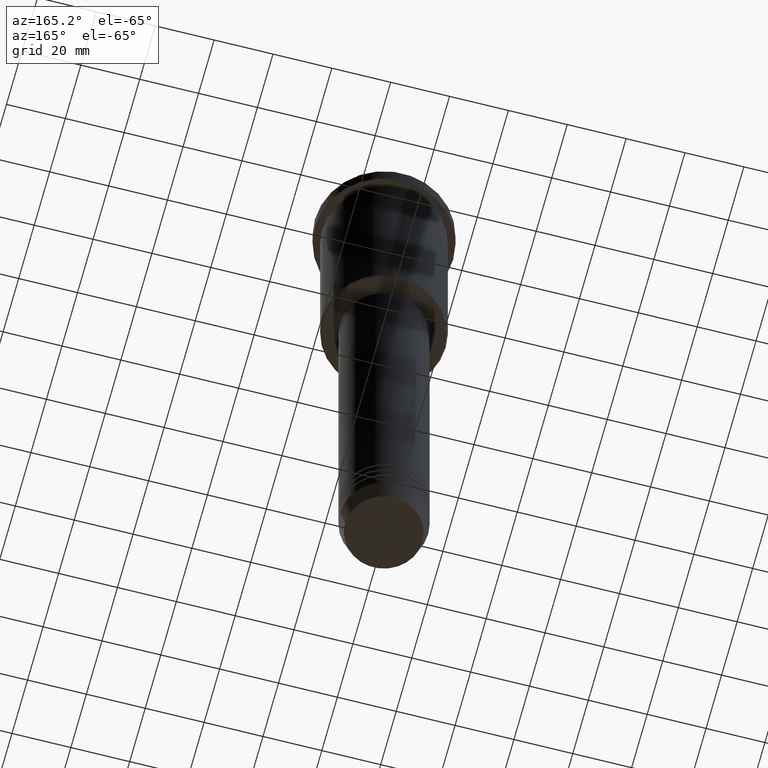
[diagram: clean part render]
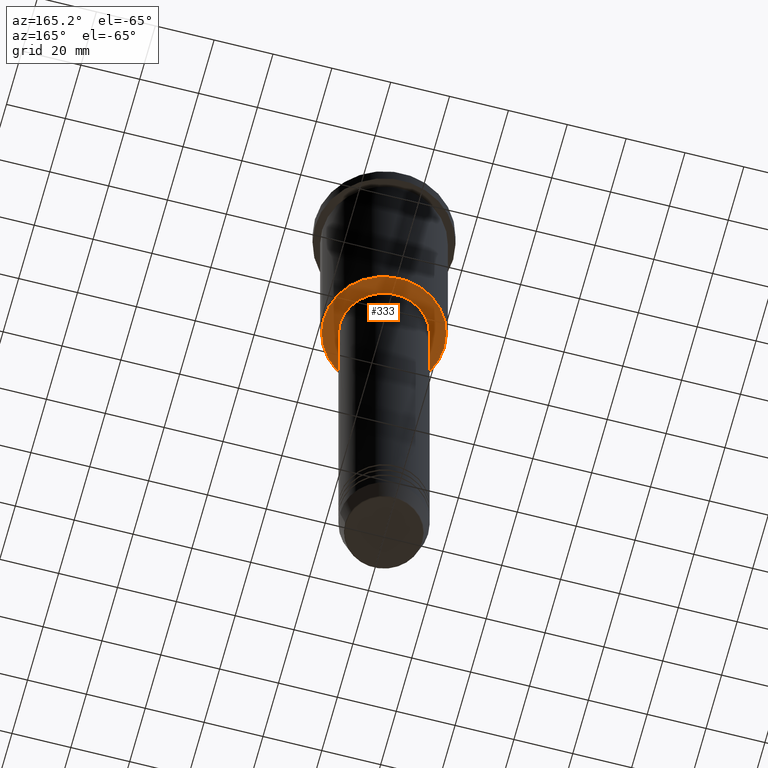
[diagram: same view with one face highlighted and labeled with its STEP entity id]
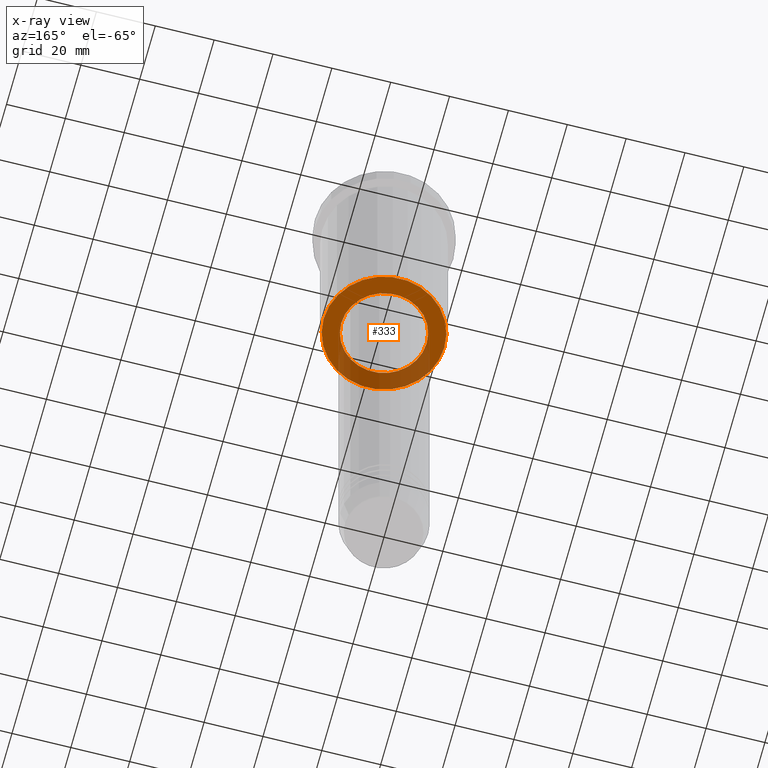
[diagram: x-ray of the same camera — body ghosted, the highlighted face saturated]
A machine part, auxiliary view. The second image highlights one B-rep face of the part: STEP entity #333.
The next image is the same camera in x-ray: the body ghosted, the highlighted face saturated — about 32% of this face is hidden behind the body in this view.
In plain terms, the highlighted planar face has unit normal (0, 0, -1).
Its self-contained STEP definition (entity closure, byte-faithful):
#2 = AXIS2_PLACEMENT_3D ( 'NONE', #643, #810, #1005 ) ;
#24 = ORIENTED_EDGE ( 'NONE', *, *, #110, .T. ) ;
#59 = AXIS2_PLACEMENT_3D ( 'NONE', #182, #102, #74 ) ;
#74 = DIRECTION ( 'NONE',  ( -1.000000000000000000, 0.000000000000000000, 0.000000000000000000 ) ) ;
#84 = PLANE ( 'NONE',  #2 ) ;
#102 = DIRECTION ( 'NONE',  ( 0.000000000000000000, 0.000000000000000000, -1.000000000000000000 ) ) ;
#110 = EDGE_CURVE ( 'NONE', #1073, #160, #778, .T. ) ;
#160 = VERTEX_POINT ( 'NONE', #486 ) ;
#182 = CARTESIAN_POINT ( 'NONE',  ( 0.000000000000000000, 0.000000000000000000, -75.99999999999998579 ) ) ;
#189 = CARTESIAN_POINT ( 'NONE',  ( 20.50000000000004619, 0.000000000000000000, -75.99999999999998579 ) ) ;
#193 = ORIENTED_EDGE ( 'NONE', *, *, #289, .T. ) ;
#229 = CARTESIAN_POINT ( 'NONE',  ( 0.000000000000000000, 0.000000000000000000, -75.99999999999998579 ) ) ;
#240 = EDGE_CURVE ( 'NONE', #160, #1073, #628, .T. ) ;
#241 = DIRECTION ( 'NONE',  ( 0.000000000000000000, 0.000000000000000000, -1.000000000000000000 ) ) ;
#255 = EDGE_LOOP ( 'NONE', ( #193, #1110 ) ) ;
#262 = FACE_OUTER_BOUND ( 'NONE', #255, .T. ) ;
#289 = EDGE_CURVE ( 'NONE', #356, #1150, #801, .T. ) ;
#333 = ADVANCED_FACE ( 'NONE', ( #262, #1098 ), #84, .T. ) ;
#356 = VERTEX_POINT ( 'NONE', #189 ) ;
#406 = DIRECTION ( 'NONE',  ( -0.000000000000000000, -0.000000000000000000, 1.000000000000000000 ) ) ;
#413 = AXIS2_PLACEMENT_3D ( 'NONE', #1157, #406, #1069 ) ;
#486 = CARTESIAN_POINT ( 'NONE',  ( -14.49999999999999822, 1.775737858763662015E-15, -75.99999999999998579 ) ) ;
#521 = EDGE_LOOP ( 'NONE', ( #24, #966 ) ) ;
#605 = AXIS2_PLACEMENT_3D ( 'NONE', #229, #636, #1050 ) ;
#628 = CIRCLE ( 'NONE', #413, 14.49999999999999822 ) ;
#636 = DIRECTION ( 'NONE',  ( -0.000000000000000000, -0.000000000000000000, 1.000000000000000000 ) ) ;
#643 = CARTESIAN_POINT ( 'NONE',  ( 0.000000000000000000, 21.00000000000000000, -75.99999999999998579 ) ) ;
#716 = CARTESIAN_POINT ( 'NONE',  ( -20.50000000000004619, 2.541142108230760635E-15, -75.99999999999998579 ) ) ;
#748 = AXIS2_PLACEMENT_3D ( 'NONE', #874, #241, #1165 ) ;
#778 = CIRCLE ( 'NONE', #605, 14.49999999999999822 ) ;
#801 = CIRCLE ( 'NONE', #59, 20.50000000000004619 ) ;
#810 = DIRECTION ( 'NONE',  ( 0.000000000000000000, 0.000000000000000000, -1.000000000000000000 ) ) ;
#874 = CARTESIAN_POINT ( 'NONE',  ( 0.000000000000000000, 0.000000000000000000, -75.99999999999998579 ) ) ;
#897 = CARTESIAN_POINT ( 'NONE',  ( 14.49999999999999822, 0.000000000000000000, -75.99999999999998579 ) ) ;
#959 = CIRCLE ( 'NONE', #748, 20.50000000000004619 ) ;
#966 = ORIENTED_EDGE ( 'NONE', *, *, #240, .T. ) ;
#1005 = DIRECTION ( 'NONE',  ( -1.000000000000000000, 0.000000000000000000, -0.000000000000000000 ) ) ;
#1050 = DIRECTION ( 'NONE',  ( 1.000000000000000000, 0.000000000000000000, 0.000000000000000000 ) ) ;
#1069 = DIRECTION ( 'NONE',  ( 1.000000000000000000, 0.000000000000000000, 0.000000000000000000 ) ) ;
#1073 = VERTEX_POINT ( 'NONE', #897 ) ;
#1088 = EDGE_CURVE ( 'NONE', #1150, #356, #959, .T. ) ;
#1098 = FACE_BOUND ( 'NONE', #521, .T. ) ;
#1110 = ORIENTED_EDGE ( 'NONE', *, *, #1088, .T. ) ;
#1150 = VERTEX_POINT ( 'NONE', #716 ) ;
#1157 = CARTESIAN_POINT ( 'NONE',  ( 0.000000000000000000, 0.000000000000000000, -75.99999999999998579 ) ) ;
#1165 = DIRECTION ( 'NONE',  ( -1.000000000000000000, 0.000000000000000000, 0.000000000000000000 ) ) ;